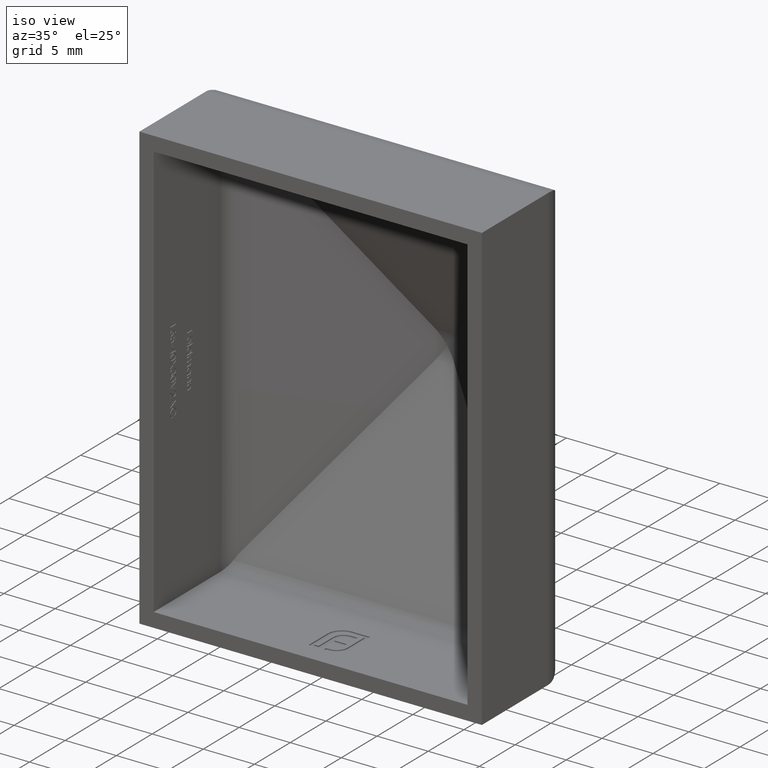
[diagram: clean part render]
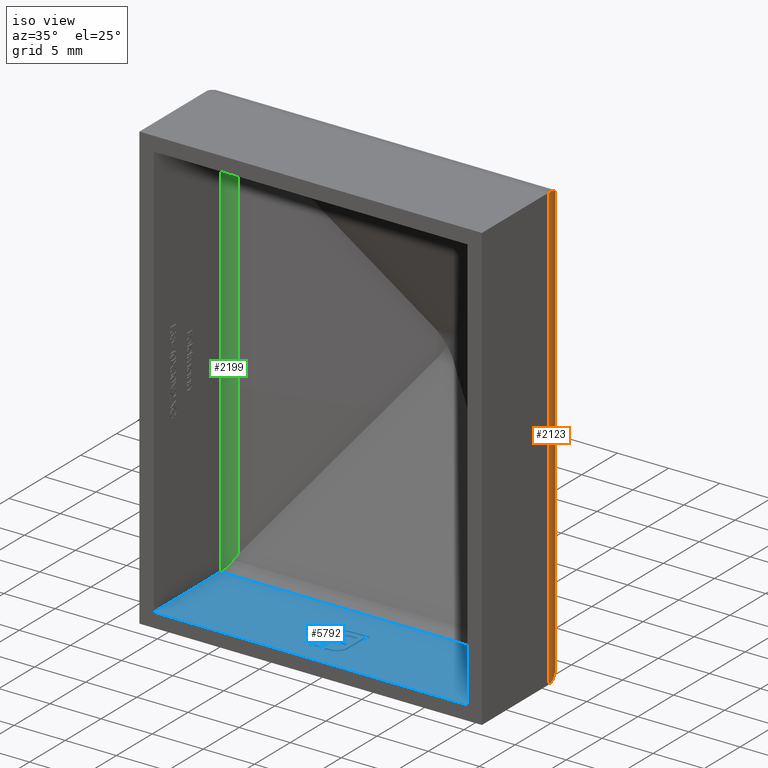
[diagram: same view with three faces highlighted in distinct colors, each labeled with its STEP entity id]
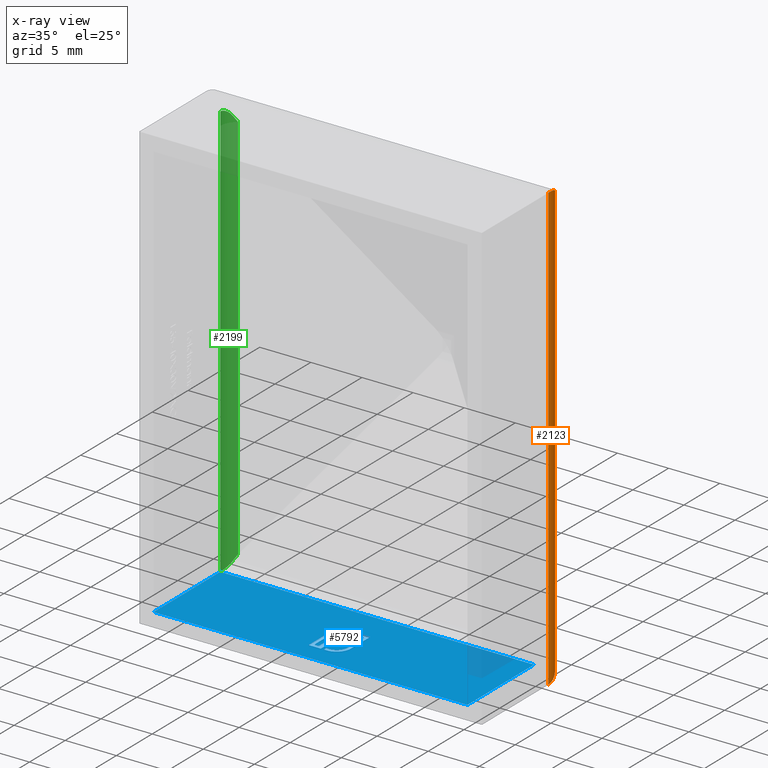
[diagram: x-ray of the same camera — body ghosted, the three highlighted faces saturated]
A machine part, iso view with three faces highlighted in distinct colors.
The next image is the same camera in x-ray (body ghosted, the three faces saturated) — at least one of them is partly hidden behind the body in this view.
Their STEP definitions:

[orange] entity #2123 — the highlighted cylindrical surface (partial cylindrical patch) has radius 3 mm, axis along (-0, -0, -1).
#6 = CARTESIAN_POINT ( 'NONE',  ( 15.37148168312974050, 11.82244978327095808, -19.95507723846092318 ) ) ;
#386 = CARTESIAN_POINT ( 'NONE',  ( 16.70326928354632301, 9.841064627597743808, 21.69708704955368717 ) ) ;
#1296 = CARTESIAN_POINT ( 'NONE',  ( 15.28707708930760845, 11.87280714091108358, -19.84517682961195106 ) ) ;
#1412 = CARTESIAN_POINT ( 'NONE',  ( 15.53236989041276317, 11.70961505891849619, -20.20132888707435015 ) ) ;
#1558 = CARTESIAN_POINT ( 'NONE',  ( 15.66867918130274084, 11.60893486939139763, 20.42105435541788339 ) ) ;
#1667 = CARTESIAN_POINT ( 'NONE',  ( 16.74033533030245735, 9.572631146092316357, 21.73909050069356752 ) ) ;
#1726 = CARTESIAN_POINT ( 'NONE',  ( 16.67551108115544167, 9.973934257418351379, 21.66558790018897440 ) ) ;
#2123 = ADVANCED_FACE ( 'NONE', ( #17419 ), #5554, .T. ) ;
#2312 = CARTESIAN_POINT ( 'NONE',  ( 15.37148168312973873, 11.82244978327095808, 19.95507723846092674 ) ) ;
#2420 = LINE ( 'NONE', #7260, #16449 ) ;
#2434 = CARTESIAN_POINT ( 'NONE',  ( 16.70326928354632301, 9.841064627597743808, -21.69708704955368717 ) ) ;
#3070 = CARTESIAN_POINT ( 'NONE',  ( 16.23055599966765072, 11.00033405241351403, 21.14613417132414952 ) ) ;
#3130 = CARTESIAN_POINT ( 'NONE',  ( 16.40821662155761373, 10.69218017578038804, 21.35687643289709570 ) ) ;
#3826 = CARTESIAN_POINT ( 'NONE',  ( 16.60442991971268967, 10.22910847771391296, -21.58437289162511163 ) ) ;
#3882 = CARTESIAN_POINT ( 'NONE',  ( 16.40821662155761373, 10.69218017578038804, -21.35687643289709570 ) ) ;
#3962 = CARTESIAN_POINT ( 'NONE',  ( 15.45331175715145378, 11.76800864154545678, -20.07389013918130871 ) ) ;
#4200 = VERTEX_POINT ( 'NONE', #4577 ) ;
#4236 = ORIENTED_EDGE ( 'NONE', *, *, #7316, .F. ) ;
#4286 = CARTESIAN_POINT ( 'NONE',  ( 15.66867918130274084, 11.60893486939139763, -20.42105435541788339 ) ) ;
#4492 = CARTESIAN_POINT ( 'NONE',  ( 15.28707708930760667, 11.87280714091108358, 21.75000000000000000 ) ) ;
#4577 = CARTESIAN_POINT ( 'NONE',  ( 16.74999999999999289, 9.296493103079967568, 21.75000000000000000 ) ) ;
#5199 = CARTESIAN_POINT ( 'NONE',  ( 15.53236989041276317, 11.70961505891849619, 20.20132888707435015 ) ) ;
#5215 = ORIENTED_EDGE ( 'NONE', *, *, #5414, .F. ) ;
#5268 = CARTESIAN_POINT ( 'NONE',  ( 16.09692896685115215, 11.17674144436293204, -20.98432485077248799 ) ) ;
#5414 = EDGE_CURVE ( 'NONE', #11470, #6874, #9003, .T. ) ;
#5554 = CYLINDRICAL_SURFACE ( 'NONE', #15036, 2.999999999999990674 ) ;
#5724 = CARTESIAN_POINT ( 'NONE',  ( 16.09692896685115215, 11.17674144436293204, 20.98432485077248799 ) ) ;
#5844 = CARTESIAN_POINT ( 'NONE',  ( 15.81448601036917267, 11.48311307768285694, 20.61918057407262594 ) ) ;
#6088 = DIRECTION ( 'NONE',  ( -0.000000000000000000, -0.000000000000000000, -1.000000000000000000 ) ) ;
#6197 = CARTESIAN_POINT ( 'NONE',  ( 15.53236989041276317, 11.70961505891849619, -20.20132888707435015 ) ) ;
#6632 = CARTESIAN_POINT ( 'NONE',  ( 16.75000000000000000, 9.296493103079967568, -21.75000000000000000 ) ) ;
#6874 = VERTEX_POINT ( 'NONE', #6197 ) ;
#7260 = CARTESIAN_POINT ( 'NONE',  ( 16.75000000000000000, 9.296493103079967568, 21.75000000000000000 ) ) ;
#7316 = EDGE_CURVE ( 'NONE', #11805, #11470, #12665, .T. ) ;
#7411 = DIRECTION ( 'NONE',  ( -0.000000000000000000, -0.000000000000000000, -1.000000000000000000 ) ) ;
#9003 =( BOUNDED_CURVE ( )  B_SPLINE_CURVE ( 3, ( #1296, #6, #3962, #1412 ),
 .UNSPECIFIED., .F., .F. ) 
 B_SPLINE_CURVE_WITH_KNOTS ( ( 4, 4 ),
 ( 3.679522182368637484, 3.777767943132392947 ),
 .UNSPECIFIED. ) 
 CURVE ( )  GEOMETRIC_REPRESENTATION_ITEM ( )  RATIONAL_B_SPLINE_CURVE ( ( 1.000000000000000000, 0.9991958092737058816, 0.9991958092737058816, 1.000000000000000000 ) ) 
 REPRESENTATION_ITEM ( '' )  );
#9097 = EDGE_CURVE ( 'NONE', #4200, #12010, #9371, .T. ) ;
#9191 = EDGE_CURVE ( 'NONE', #4200, #13666, #2420, .T. ) ;
#9213 = CARTESIAN_POINT ( 'NONE',  ( 16.75000000000000355, 9.435916837626141529, -21.75000000000000355 ) ) ;
#9371 = B_SPLINE_CURVE_WITH_KNOTS ( 'NONE', 3,
 ( #11159, #16619, #1667, #386, #1726, #12533, #15244, #9842, #3130, #3070, #5724, #5844, #1558, #12585 ),
 .UNSPECIFIED., .F., .F.,
 ( 4, 2, 2, 2, 2, 2, 4 ),
 ( 0.000000000000000000, 0.0004112258583125507879, 0.0008224517166251015757, 0.001233677574937652472, 0.001644903433250203151, 0.002467355149875301908, 0.003289806866500400665 ),
 .UNSPECIFIED. ) ;
#9753 = CARTESIAN_POINT ( 'NONE',  ( 13.75000000000000888, 9.296493103079965792, 21.75000000000000000 ) ) ;
#9842 = CARTESIAN_POINT ( 'NONE',  ( 16.46377361363001413, 10.58147893519188187, 21.42180310184390279 ) ) ;
#9924 = EDGE_CURVE ( 'NONE', #11805, #12010, #10640, .T. ) ;
#10404 = B_SPLINE_CURVE_WITH_KNOTS ( 'NONE', 3,
 ( #6632, #9213, #10766, #2434, #14789, #3826, #13314, #12020, #3882, #13376, #5268, #16444, #4286, #10995 ),
 .UNSPECIFIED., .F., .F.,
 ( 4, 2, 2, 2, 2, 2, 4 ),
 ( 0.000000000000000000, 0.0004112258583125507879, 0.0008224517166251015757, 0.001233677574937652472, 0.001644903433250203151, 0.002467355149875301908, 0.003289806866500400665 ),
 .UNSPECIFIED. ) ;
#10421 = ORIENTED_EDGE ( 'NONE', *, *, #9924, .T. ) ;
#10640 =( BOUNDED_CURVE ( )  B_SPLINE_CURVE ( 3, ( #13301, #2312, #17276, #5199 ),
 .UNSPECIFIED., .F., .F. ) 
 B_SPLINE_CURVE_WITH_KNOTS ( ( 4, 4 ),
 ( 0.5379295287788433688, 0.6361752895425998311 ),
 .UNSPECIFIED. ) 
 CURVE ( )  GEOMETRIC_REPRESENTATION_ITEM ( )  RATIONAL_B_SPLINE_CURVE ( ( 1.000000000000000000, 0.9991958092737058816, 0.9991958092737058816, 1.000000000000000000 ) ) 
 REPRESENTATION_ITEM ( '' )  );
#10766 = CARTESIAN_POINT ( 'NONE',  ( 16.74033533030245735, 9.572631146092316357, -21.73909050069356752 ) ) ;
#10995 = CARTESIAN_POINT ( 'NONE',  ( 15.53236989041276317, 11.70961505891849619, -20.20132888707435015 ) ) ;
#11159 = CARTESIAN_POINT ( 'NONE',  ( 16.74999999999999289, 9.296493103079967568, 21.75000000000000000 ) ) ;
#11346 = ORIENTED_EDGE ( 'NONE', *, *, #9097, .F. ) ;
#11470 = VERTEX_POINT ( 'NONE', #15775 ) ;
#11664 = EDGE_LOOP ( 'NONE', ( #5215, #4236, #10421, #11346, #17524, #15028 ) ) ;
#11805 = VERTEX_POINT ( 'NONE', #15290 ) ;
#12010 = VERTEX_POINT ( 'NONE', #15995 ) ;
#12020 = CARTESIAN_POINT ( 'NONE',  ( 16.46377361363001413, 10.58147893519188187, -21.42180310184390279 ) ) ;
#12244 = VECTOR ( 'NONE', #7411, 1000.000000000000000 ) ;
#12533 = CARTESIAN_POINT ( 'NONE',  ( 16.60442991971268967, 10.22910847771391296, 21.58437289162511163 ) ) ;
#12585 = CARTESIAN_POINT ( 'NONE',  ( 15.53236989041276317, 11.70961505891849619, 20.20132888707435015 ) ) ;
#12643 = EDGE_CURVE ( 'NONE', #13666, #6874, #10404, .T. ) ;
#12665 = LINE ( 'NONE', #4492, #12244 ) ;
#13301 = CARTESIAN_POINT ( 'NONE',  ( 15.28707708930760667, 11.87280714091108358, 19.84517682961194751 ) ) ;
#13314 = CARTESIAN_POINT ( 'NONE',  ( 16.56163005934021015, 10.35029205173072064, -21.53525582871081667 ) ) ;
#13376 = CARTESIAN_POINT ( 'NONE',  ( 16.23055599966765072, 11.00033405241351403, -21.14613417132414952 ) ) ;
#13666 = VERTEX_POINT ( 'NONE', #13733 ) ;
#13733 = CARTESIAN_POINT ( 'NONE',  ( 16.75000000000000000, 9.296493103079967568, -21.75000000000000000 ) ) ;
#14025 = DIRECTION ( 'NONE',  ( -0.000000000000000000, -0.000000000000000000, -1.000000000000000000 ) ) ;
#14789 = CARTESIAN_POINT ( 'NONE',  ( 16.67551108115544167, 9.973934257418351379, -21.66558790018897440 ) ) ;
#15028 = ORIENTED_EDGE ( 'NONE', *, *, #12643, .T. ) ;
#15036 = AXIS2_PLACEMENT_3D ( 'NONE', #9753, #14025, #16876 ) ;
#15244 = CARTESIAN_POINT ( 'NONE',  ( 16.56163005934021015, 10.35029205173072064, 21.53525582871081667 ) ) ;
#15290 = CARTESIAN_POINT ( 'NONE',  ( 15.28707708930760667, 11.87280714091108358, 19.84517682961194751 ) ) ;
#15775 = CARTESIAN_POINT ( 'NONE',  ( 15.28707708930760845, 11.87280714091108358, -19.84517682961195106 ) ) ;
#15995 = CARTESIAN_POINT ( 'NONE',  ( 15.53236989041276317, 11.70961505891849619, 20.20132888707435015 ) ) ;
#16444 = CARTESIAN_POINT ( 'NONE',  ( 15.81448601036917267, 11.48311307768285694, -20.61918057407262594 ) ) ;
#16449 = VECTOR ( 'NONE', #6088, 1000.000000000000000 ) ;
#16619 = CARTESIAN_POINT ( 'NONE',  ( 16.75000000000000355, 9.435916837626141529, 21.75000000000000355 ) ) ;
#16876 = DIRECTION ( 'NONE',  ( -1.000000000000000000, 0.000000000000000000, 0.000000000000000000 ) ) ;
#17276 = CARTESIAN_POINT ( 'NONE',  ( 15.45331175715145200, 11.76800864154545678, 20.07389013918131226 ) ) ;
#17419 = FACE_OUTER_BOUND ( 'NONE', #11664, .T. ) ;
#17524 = ORIENTED_EDGE ( 'NONE', *, *, #9191, .T. ) ;

[blue] entity #5792 — the highlighted planar face has unit normal (0, 0, 1).
#73 = B_SPLINE_CURVE_WITH_KNOTS ( 'NONE', 3,
 ( #12580, #9781, #1899, #722, #15525, #4764, #11380 ),
 .UNSPECIFIED., .F., .F.,
 ( 4, 1, 1, 1, 4 ),
 ( 0.000000000000000000, 0.2548261097762420380, 0.5042880443381988487, 0.7513476757168013886, 1.000000000000000000 ),
 .UNSPECIFIED. ) ;
#109 = CARTESIAN_POINT ( 'NONE',  ( 1.249941684161429256, 5.747375787263824698, -20.35000000000000142 ) ) ;
#111 = CARTESIAN_POINT ( 'NONE',  ( 0.6298724851063767227, 2.070098538518159614, -20.35000000000000497 ) ) ;
#146 = VERTEX_POINT ( 'NONE', #4765 ) ;
#203 = EDGE_CURVE ( 'NONE', #10649, #8007, #11372, .T. ) ;
#256 = VECTOR ( 'NONE', #806, 1000.000000000000000 ) ;
#289 = EDGE_CURVE ( 'NONE', #12456, #10768, #12183, .T. ) ;
#417 = CARTESIAN_POINT ( 'NONE',  ( 0.9606786933283801844, 2.654825718111416766, -20.35000000000000142 ) ) ;
#422 = ORIENTED_EDGE ( 'NONE', *, *, #4562, .T. ) ;
#426 = VERTEX_POINT ( 'NONE', #12448 ) ;
#439 = CARTESIAN_POINT ( 'NONE',  ( 1.514462327968287170, 2.991952414275720340, -20.35000000000000142 ) ) ;
#494 = CARTESIAN_POINT ( 'NONE',  ( -0.3973694555211990109, 4.297454346209211629, -20.34999999999999432 ) ) ;
#522 = EDGE_CURVE ( 'NONE', #9059, #6771, #2862, .T. ) ;
#537 = ORIENTED_EDGE ( 'NONE', *, *, #5242, .T. ) ;
#546 = CARTESIAN_POINT ( 'NONE',  ( 1.569979006298121593, 3.378119897364127766, -20.35000000000000142 ) ) ;
#580 = CARTESIAN_POINT ( 'NONE',  ( 0.4603525481732841929, 2.023855686642844987, -20.35000000000000142 ) ) ;
#583 = CARTESIAN_POINT ( 'NONE',  ( -0.01224632610215855948, 4.909727081875441712, -20.35000000000000142 ) ) ;
#591 = CARTESIAN_POINT ( 'NONE',  ( -0.5076111054239802467, 6.037914286280331666, -20.35000000000000142 ) ) ;
#643 = CARTESIAN_POINT ( 'NONE',  ( 0.9097537172052805321, 2.603799445529776602, -20.35000000000000142 ) ) ;
#644 = CARTESIAN_POINT ( 'NONE',  ( 0.2827115206306843875, 2.000870976990909877, -20.34999999999999787 ) ) ;
#702 = CARTESIAN_POINT ( 'NONE',  ( -16.74999999999998934, 3.076925082857724936E-15, -20.35000000000000142 ) ) ;
#712 = CARTESIAN_POINT ( 'NONE',  ( 0.009404991138003557932, 4.916713647705303281, -20.35000000000000497 ) ) ;
#722 = CARTESIAN_POINT ( 'NONE',  ( -1.208358635274771054, 5.645294444760965646, -20.34999999999999787 ) ) ;
#737 = ORIENTED_EDGE ( 'NONE', *, *, #9843, .T. ) ;
#797 = CARTESIAN_POINT ( 'NONE',  ( -1.593655236762294036, 4.689293212036393044, -20.35000000000000497 ) ) ;
#806 = DIRECTION ( 'NONE',  ( 1.000000000000000000, 0.000000000000000000, 0.000000000000000000 ) ) ;
#812 = VERTEX_POINT ( 'NONE', #1209 ) ;
#816 = ORIENTED_EDGE ( 'NONE', *, *, #14896, .T. ) ;
#844 = LINE ( 'NONE', #13371, #14623 ) ;
#860 = CARTESIAN_POINT ( 'NONE',  ( -1.592784259771387489, 4.780145623733080384, -20.35000000000000497 ) ) ;
#871 = CARTESIAN_POINT ( 'NONE',  ( -0.1714485654303601336, 5.300793095404714883, -20.35000000000000142 ) ) ;
#876 = CARTESIAN_POINT ( 'NONE',  ( 15.34999999999999432, 9.296493103079969345, -20.35000000000000142 ) ) ;
#964 = CARTESIAN_POINT ( 'NONE',  ( -0.6916926977970212498, 5.983196387352718304, -20.35000000000000142 ) ) ;
#994 = B_SPLINE_CURVE_WITH_KNOTS ( 'NONE', 3,
 ( #8261, #1494, #15065, #6961, #16426, #494, #1952 ),
 .UNSPECIFIED., .F., .F.,
 ( 4, 1, 1, 1, 4 ),
 ( 0.000000000000000000, 0.2296577939907727406, 0.4728894664265903547, 0.7276593582172861119, 1.000000000000000000 ),
 .UNSPECIFIED. ) ;
#998 = ORIENTED_EDGE ( 'NONE', *, *, #7323, .T. ) ;
#1027 = CARTESIAN_POINT ( 'NONE',  ( -1.255464568732409303, 4.898598228390397935, -20.35000000000000142 ) ) ;
#1031 = B_SPLINE_CURVE_WITH_KNOTS ( 'NONE', 3,
 ( #6881, #5587, #1236, #2566, #3963, #14869, #8071 ),
 .UNSPECIFIED., .F., .F.,
 ( 4, 1, 1, 1, 4 ),
 ( 0.000000000000000000, 0.2752367449667309507, 0.5313220627563629561, 0.7730509928784794482, 1.000000000000000000 ),
 .UNSPECIFIED. ) ;
#1105 = CARTESIAN_POINT ( 'NONE',  ( 1.249941684161429256, 3.378119897364127766, -20.35000000000000142 ) ) ;
#1195 = B_SPLINE_CURVE_WITH_KNOTS ( 'NONE', 3,
 ( #12064, #13245, #5144, #13421, #17341, #5319, #10570, #3813, #6395, #4101, #6801 ),
 .UNSPECIFIED., .F., .F.,
 ( 4, 1, 1, 1, 1, 1, 1, 1, 4 ),
 ( 0.000000000000000000, 0.1281924671261277793, 0.2535812564278780434, 0.3754453157299565413, 0.4969638611844704457, 0.6193912034695908675, 0.7436315793729396662, 0.8699315812134844617, 1.000000000000000000 ),
 .UNSPECIFIED. ) ;
#1209 = CARTESIAN_POINT ( 'NONE',  ( -0.5461861441567423814, 5.080359225565667991, -20.35000000000000497 ) ) ;
#1236 = CARTESIAN_POINT ( 'NONE',  ( -0.8354877925341719358, 4.339866747039957673, -20.35000000000000497 ) ) ;
#1440 = CARTESIAN_POINT ( 'NONE',  ( -0.5204521862445140590, 5.104595201156042705, -20.34999999999999787 ) ) ;
#1458 = ORIENTED_EDGE ( 'NONE', *, *, #11866, .T. ) ;
#1494 = CARTESIAN_POINT ( 'NONE',  ( -0.3606090146142270636, 4.541116454859017715, -20.35000000000000142 ) ) ;
#1509 = VERTEX_POINT ( 'NONE', #12786 ) ;
#1568 = LINE ( 'NONE', #8869, #16630 ) ;
#1638 = CARTESIAN_POINT ( 'NONE',  ( -0.2356346453882609271, 4.762355867879464633, -20.35000000000000142 ) ) ;
#1668 = EDGE_CURVE ( 'NONE', #15688, #10649, #3840, .T. ) ;
#1691 = CARTESIAN_POINT ( 'NONE',  ( 1.569979006298121593, 3.378119897364127766, -20.35000000000000142 ) ) ;
#1733 = LINE ( 'NONE', #11398, #8327 ) ;
#1744 = VECTOR ( 'NONE', #7519, 1000.000000000000000 ) ;
#1748 = EDGE_CURVE ( 'NONE', #7594, #16052, #6822, .T. ) ;
#1756 = CARTESIAN_POINT ( 'NONE',  ( 1.073594606921022265, 2.791498116529299356, -20.35000000000000497 ) ) ;
#1805 = CARTESIAN_POINT ( 'NONE',  ( 0.5958178940768260601, 2.396431398560824544, -20.35000000000000497 ) ) ;
#1842 = CARTESIAN_POINT ( 'NONE',  ( -0.5695567871135009952, 5.055679031104507004, -20.35000000000000497 ) ) ;
#1868 = CARTESIAN_POINT ( 'NONE',  ( 0.9356193142057492862, 2.628644739911363271, -20.35000000000000142 ) ) ;
#1880 = CARTESIAN_POINT ( 'NONE',  ( 0.8694891532540344192, 2.182062048052254788, -20.35000000000000142 ) ) ;
#1899 = CARTESIAN_POINT ( 'NONE',  ( -1.320473831698218525, 5.514706226021780289, -20.34999999999999787 ) ) ;
#1917 = VECTOR ( 'NONE', #13983, 1000.000000000000000 ) ;
#1940 = CARTESIAN_POINT ( 'NONE',  ( -1.273617914625601255, 3.504665267086544578, -20.35000000000000142 ) ) ;
#1952 = CARTESIAN_POINT ( 'NONE',  ( -0.3975973874504206695, 4.270468859342201107, -20.35000000000000142 ) ) ;
#1997 = EDGE_CURVE ( 'NONE', #17277, #426, #3823, .T. ) ;
#2004 = CARTESIAN_POINT ( 'NONE',  ( 0.8311173314672372081, 3.683461628178215985, -20.34999999999999787 ) ) ;
#2138 = EDGE_CURVE ( 'NONE', #3977, #13225, #13534, .T. ) ;
#2159 = CARTESIAN_POINT ( 'NONE',  ( 0.05378126293338754416, 4.931033226544008663, -20.35000000000000142 ) ) ;
#2201 = CARTESIAN_POINT ( 'NONE',  ( 1.360158619080953146, 2.655586657336135747, -20.35000000000000142 ) ) ;
#2298 = ORIENTED_EDGE ( 'NONE', *, *, #3829, .T. ) ;
#2304 = CARTESIAN_POINT ( 'NONE',  ( -0.6017028224865766939, 6.011896431070681501, -20.34999999999999432 ) ) ;
#2308 = LINE ( 'NONE', #15643, #13359 ) ;
#2358 = CARTESIAN_POINT ( 'NONE',  ( -1.273617914625601477, 4.689293212036392156, -20.35000000000000142 ) ) ;
#2510 = CARTESIAN_POINT ( 'NONE',  ( 15.34999999999999076, 9.296493103079964015, -20.35000000000000142 ) ) ;
#2566 = CARTESIAN_POINT ( 'NONE',  ( -0.8226008834491617128, 4.474753337739155512, -20.34999999999999787 ) ) ;
#2793 = EDGE_CURVE ( 'NONE', #13225, #8531, #10916, .T. ) ;
#2808 = CARTESIAN_POINT ( 'NONE',  ( -0.6017028224865766939, 6.011896431070681501, -20.34999999999999432 ) ) ;
#2827 = CARTESIAN_POINT ( 'NONE',  ( -0.2212502915791821068, 4.777466759972011978, -20.35000000000000142 ) ) ;
#2837 = CARTESIAN_POINT ( 'NONE',  ( -0.6745229777412099503, 4.917428566404431045, -20.34999999999999432 ) ) ;
#2862 = LINE ( 'NONE', #15394, #5233 ) ;
#2924 = CARTESIAN_POINT ( 'NONE',  ( -1.273617914625601477, 2.320037322136695668, -20.35000000000000142 ) ) ;
#2958 = CARTESIAN_POINT ( 'NONE',  ( -0.2795777449075820820, 5.264358188120460191, -20.35000000000000142 ) ) ;
#3052 = VERTEX_POINT ( 'NONE', #14244 ) ;
#3108 = LINE ( 'NONE', #14237, #7601 ) ;
#3121 = DIRECTION ( 'NONE',  ( 3.112483067039301959E-15, 1.000000000000000000, 0.000000000000000000 ) ) ;
#3154 = ORIENTED_EDGE ( 'NONE', *, *, #5748, .T. ) ;
#3160 = CARTESIAN_POINT ( 'NONE',  ( -0.3535106134826110913, 4.562747842313975788, -20.35000000000000142 ) ) ;
#3202 = DIRECTION ( 'NONE',  ( 6.639963876350506219E-16, 1.000000000000000000, 0.000000000000000000 ) ) ;
#3271 = CARTESIAN_POINT ( 'NONE',  ( 0.1918591089339971856, 2.320037322136695668, -20.35000000000000142 ) ) ;
#3316 = EDGE_CURVE ( 'NONE', #10701, #1509, #2308, .T. ) ;
#3335 = DIRECTION ( 'NONE',  ( 1.000000000000000000, 0.000000000000000000, 0.000000000000000000 ) ) ;
#3393 = CARTESIAN_POINT ( 'NONE',  ( 0.2979379987738058344, 2.322657440803786777, -20.35000000000000497 ) ) ;
#3458 = DIRECTION ( 'NONE',  ( 1.000000000000000000, 0.000000000000000000, 0.000000000000000000 ) ) ;
#3493 = CARTESIAN_POINT ( 'NONE',  ( -0.9429671098670290297, 5.857592722183348144, -20.35000000000000142 ) ) ;
#3524 = CARTESIAN_POINT ( 'NONE',  ( 1.569979006298121815, 4.722766503382322512, -20.35000000000000142 ) ) ;
#3734 = CARTESIAN_POINT ( 'NONE',  ( -1.100299755249489086, 5.271905134034180485, -20.35000000000000497 ) ) ;
#3751 = CARTESIAN_POINT ( 'NONE',  ( -0.1053184044786455303, 2.000000000000003553, -20.35000000000000142 ) ) ;
#3782 = CARTESIAN_POINT ( 'NONE',  ( -0.05429422266242510398, 5.335896261809780938, -20.35000000000000142 ) ) ;
#3813 = CARTESIAN_POINT ( 'NONE',  ( -0.8021571202329981221, 5.571028710023417929, -20.35000000000000497 ) ) ;
#3823 = LINE ( 'NONE', #7247, #1917 ) ;
#3829 = EDGE_CURVE ( 'NONE', #4605, #5306, #13761, .T. ) ;
#3840 = LINE ( 'NONE', #10267, #256 ) ;
#3894 = ORIENTED_EDGE ( 'NONE', *, *, #12520, .T. ) ;
#3939 = CARTESIAN_POINT ( 'NONE',  ( 0.9356193142057492862, 2.628644739911363271, -20.35000000000000142 ) ) ;
#3955 = EDGE_CURVE ( 'NONE', #16772, #3052, #6796, .T. ) ;
#3963 = CARTESIAN_POINT ( 'NONE',  ( -0.8002984377738689981, 4.599922783473945564, -20.34999999999999432 ) ) ;
#3977 = VERTEX_POINT ( 'NONE', #11407 ) ;
#4002 = FACE_BOUND ( 'NONE', #13743, .T. ) ;
#4101 = CARTESIAN_POINT ( 'NONE',  ( -0.9388295186508806012, 5.458112796430774516, -20.35000000000000497 ) ) ;
#4102 = EDGE_CURVE ( 'NONE', #812, #12456, #8317, .T. ) ;
#4137 = ORIENTED_EDGE ( 'NONE', *, *, #13800, .T. ) ;
#4157 = ORIENTED_EDGE ( 'NONE', *, *, #17070, .T. ) ;
#4178 = EDGE_LOOP ( 'NONE', ( #15600, #17063, #11504, #10038 ) ) ;
#4179 = VECTOR ( 'NONE', #9233, 1000.000000000000000 ) ;
#4219 = EDGE_CURVE ( 'NONE', #9979, #7283, #6570, .T. ) ;
#4398 = VERTEX_POINT ( 'NONE', #7989 ) ;
#4504 = B_SPLINE_CURVE_WITH_KNOTS ( 'NONE', 3,
 ( #9723, #11210, #10982, #2837, #5613, #1842, #12817 ),
 .UNSPECIFIED., .F., .F.,
 ( 4, 1, 1, 1, 4 ),
 ( 0.000000000000000000, 0.2650465622674533228, 0.5182727197139301856, 0.7624607574988784275, 1.000000000000000000 ),
 .UNSPECIFIED. ) ;
#4562 = EDGE_CURVE ( 'NONE', #4398, #14326, #8901, .T. ) ;
#4569 = CARTESIAN_POINT ( 'NONE',  ( -0.7666200139957904947, 4.717051551201310033, -20.35000000000000142 ) ) ;
#4605 = VERTEX_POINT ( 'NONE', #1691 ) ;
#4670 = CARTESIAN_POINT ( 'NONE',  ( 0.4011641252880021602, 2.338190668029887398, -20.34999999999999432 ) ) ;
#4689 = CARTESIAN_POINT ( 'NONE',  ( -0.3975973874504206695, 3.476906927921626700, -20.35000000000000142 ) ) ;
#4751 = CARTESIAN_POINT ( 'NONE',  ( -1.411593188710042801, 5.366923256356430194, -20.35000000000000142 ) ) ;
#4764 = CARTESIAN_POINT ( 'NONE',  ( -0.9902156529353589587, 5.825923977638618467, -20.35000000000000497 ) ) ;
#4765 = CARTESIAN_POINT ( 'NONE',  ( 0.8311173314672372081, 5.372638208537442672, -20.35000000000000142 ) ) ;
#4901 = CARTESIAN_POINT ( 'NONE',  ( -0.9162930243848280698, 5.873869684325799589, -20.35000000000000142 ) ) ;
#4910 = CARTESIAN_POINT ( 'NONE',  ( -1.582738422427286462, 4.869732528274455241, -20.34999999999999432 ) ) ;
#4922 = CARTESIAN_POINT ( 'NONE',  ( 1.485736530145323808, 2.902778846682815050, -20.35000000000000497 ) ) ;
#4944 = CARTESIAN_POINT ( 'NONE',  ( 1.514462327968287170, 2.991952414275720340, -20.35000000000000142 ) ) ;
#4948 = CARTESIAN_POINT ( 'NONE',  ( -0.9429671098670290297, 5.857592722183348144, -20.35000000000000142 ) ) ;
#4960 = CARTESIAN_POINT ( 'NONE',  ( 1.360158619080953146, 2.655586657336135747, -20.35000000000000142 ) ) ;
#5009 = VECTOR ( 'NONE', #8999, 1000.000000000000000 ) ;
#5019 = LINE ( 'NONE', #3524, #6730 ) ;
#5110 = B_SPLINE_CURVE_WITH_KNOTS ( 'NONE', 3,
 ( #2808, #6942, #591, #7290, #14091, #6122, #9995 ),
 .UNSPECIFIED., .F., .F.,
 ( 4, 1, 1, 1, 4 ),
 ( 0.000000000000000000, 0.2498987543963735458, 0.4978226843676622493, 0.7474950417136815295, 0.9999999999999998890 ),
 .UNSPECIFIED. ) ;
#5144 = CARTESIAN_POINT ( 'NONE',  ( -0.3218555176182735789, 5.744615803771209173, -20.35000000000000142 ) ) ;
#5153 = DIRECTION ( 'NONE',  ( -2.728752277952260269E-15, -1.000000000000000000, 0.000000000000000000 ) ) ;
#5169 = DIRECTION ( 'NONE',  ( 1.000000000000000000, 0.000000000000000000, -0.000000000000000000 ) ) ;
#5233 = VECTOR ( 'NONE', #14207, 1000.000000000000000 ) ;
#5242 = EDGE_CURVE ( 'NONE', #7128, #12256, #9129, .T. ) ;
#5306 = VERTEX_POINT ( 'NONE', #4944 ) ;
#5319 = CARTESIAN_POINT ( 'NONE',  ( -0.6213302866039264183, 5.670410478004447974, -20.35000000000000142 ) ) ;
#5345 = CARTESIAN_POINT ( 'NONE',  ( 0.5914975507347902672, 5.372638208537442672, -20.35000000000000497 ) ) ;
#5403 = EDGE_CURVE ( 'NONE', #146, #16772, #6574, .T. ) ;
#5494 = CARTESIAN_POINT ( 'NONE',  ( -0.1714485654303601336, 5.300793095404714883, -20.35000000000000142 ) ) ;
#5527 = VERTEX_POINT ( 'NONE', #14268 ) ;
#5578 = CARTESIAN_POINT ( 'NONE',  ( -1.216060181945405105, 2.000000000000003553, -20.35000000000000142 ) ) ;
#5587 = CARTESIAN_POINT ( 'NONE',  ( -0.8374491170439732901, 4.246822666642392718, -20.34999999999999787 ) ) ;
#5613 = CARTESIAN_POINT ( 'NONE',  ( -0.6169522243960077201, 5.005627836070276615, -20.35000000000000142 ) ) ;
#5634 = CARTESIAN_POINT ( 'NONE',  ( -0.2155353393981697119, 6.067413109400516369, -20.35000000000000142 ) ) ;
#5712 = VECTOR ( 'NONE', #16792, 1000.000000000000000 ) ;
#5748 = EDGE_CURVE ( 'NONE', #8007, #9652, #16307, .T. ) ;
#5753 = CARTESIAN_POINT ( 'NONE',  ( -0.2643639572355996892, 4.732175469303321336, -20.35000000000000853 ) ) ;
#5767 = B_SPLINE_CURVE_WITH_KNOTS ( 'NONE', 3,
 ( #797, #11582, #860, #4910, #16930, #15674, #6165, #15609, #12834, #6333, #17102 ),
 .UNSPECIFIED., .F., .F.,
 ( 4, 1, 1, 1, 1, 1, 1, 1, 4 ),
 ( 0.000000000000000000, 0.1287995950824973035, 0.2547407131451100981, 0.3804244813366443601, 0.5045050273662053941, 0.6270584524605823384, 0.7500370845058726976, 0.8744898464228468837, 1.000000000000000000 ),
 .UNSPECIFIED. ) ;
#5792 = ADVANCED_FACE ( 'NONE', ( #12699, #4002 ), #11976, .T. ) ;
#5797 = EDGE_CURVE ( 'NONE', #14615, #10701, #13957, .T. ) ;
#5829 = ORIENTED_EDGE ( 'NONE', *, *, #4102, .T. ) ;
#5860 = ORIENTED_EDGE ( 'NONE', *, *, #10804, .T. ) ;
#5873 = CARTESIAN_POINT ( 'NONE',  ( 1.232195284965466264, 3.168109376151251322, -20.34999999999999432 ) ) ;
#6001 = CARTESIAN_POINT ( 'NONE',  ( -0.07063132933346838449, 4.886513121156715656, -20.35000000000000497 ) ) ;
#6114 = CARTESIAN_POINT ( 'NONE',  ( -0.1758398249650089396, 4.819897577890956519, -20.35000000000000497 ) ) ;
#6122 = CARTESIAN_POINT ( 'NONE',  ( -0.2484982190058199758, 6.066877008721581532, -20.35000000000000142 ) ) ;
#6165 = CARTESIAN_POINT ( 'NONE',  ( -1.523556698244138863, 5.127306588208772276, -20.35000000000000142 ) ) ;
#6202 = EDGE_CURVE ( 'NONE', #9652, #9111, #6978, .T. ) ;
#6238 = LINE ( 'NONE', #702, #10226 ) ;
#6285 = CARTESIAN_POINT ( 'NONE',  ( 1.514462327968287170, 2.991952414275720340, -20.35000000000000142 ) ) ;
#6287 = ORIENTED_EDGE ( 'NONE', *, *, #15897, .T. ) ;
#6297 = DIRECTION ( 'NONE',  ( -5.611237078605925576E-15, -1.000000000000000000, 8.977979325769480922E-14 ) ) ;
#6333 = CARTESIAN_POINT ( 'NONE',  ( -1.426035993195434948, 5.340952355792298434, -20.35000000000000142 ) ) ;
#6355 = VECTOR ( 'NONE', #9173, 1000.000000000000000 ) ;
#6370 = CARTESIAN_POINT ( 'NONE',  ( 0.3031170007729279692, 5.372090557383607745, -20.35000000000000142 ) ) ;
#6395 = CARTESIAN_POINT ( 'NONE',  ( -0.8872260925906645390, 5.507505519948910688, -20.34999999999999432 ) ) ;
#6430 = CARTESIAN_POINT ( 'NONE',  ( 0.2086470719412859276, 5.371029528889907034, -20.35000000000000497 ) ) ;
#6498 = EDGE_CURVE ( 'NONE', #10751, #12376, #3108, .T. ) ;
#6501 = ORIENTED_EDGE ( 'NONE', *, *, #10463, .T. ) ;
#6533 = ORIENTED_EDGE ( 'NONE', *, *, #9822, .T. ) ;
#6563 = VERTEX_POINT ( 'NONE', #4960 ) ;
#6570 = LINE ( 'NONE', #15294, #5712 ) ;
#6574 = LINE ( 'NONE', #16117, #6355 ) ;
#6599 = CARTESIAN_POINT ( 'NONE',  ( 0.3518777700023433819, 5.372638208537442672, -20.35000000000000142 ) ) ;
#6730 = VECTOR ( 'NONE', #6297, 1000.000000000000000 ) ;
#6771 = VERTEX_POINT ( 'NONE', #12700 ) ;
#6796 = LINE ( 'NONE', #7217, #14601 ) ;
#6801 = CARTESIAN_POINT ( 'NONE',  ( -0.9650104968509339853, 5.433053417308144617, -20.35000000000000142 ) ) ;
#6822 = LINE ( 'NONE', #8499, #12966 ) ;
#6842 = EDGE_CURVE ( 'NONE', #17131, #7128, #73, .T. ) ;
#6881 = CARTESIAN_POINT ( 'NONE',  ( -0.8384651271285172847, 4.198623746209474206, -20.35000000000000142 ) ) ;
#6895 = LINE ( 'NONE', #1940, #7520 ) ;
#6942 = CARTESIAN_POINT ( 'NONE',  ( -0.5702560808606765841, 6.020591954927406952, -20.35000000000000142 ) ) ;
#6961 = CARTESIAN_POINT ( 'NONE',  ( -0.3866181506439645976, 4.425299788725601147, -20.35000000000001208 ) ) ;
#6978 = LINE ( 'NONE', #11596, #16936 ) ;
#7016 = B_SPLINE_CURVE_WITH_KNOTS ( 'NONE', 3,
 ( #8525, #12563, #10046, #7289, #9875, #11188, #1880 ),
 .UNSPECIFIED., .F., .F.,
 ( 4, 1, 1, 1, 4 ),
 ( 0.000000000000000000, 0.2502112839297327418, 0.4976763372912434980, 0.7465535718222464645, 1.000000000000000000 ),
 .UNSPECIFIED. ) ;
#7105 = CARTESIAN_POINT ( 'NONE',  ( 1.207575573631551880, 3.068275607748206735, -20.35000000000001563 ) ) ;
#7128 = VERTEX_POINT ( 'NONE', #4948 ) ;
#7157 = EDGE_CURVE ( 'NONE', #10768, #146, #12460, .T. ) ;
#7201 = ORIENTED_EDGE ( 'NONE', *, *, #10571, .T. ) ;
#7214 = CARTESIAN_POINT ( 'NONE',  ( -0.8384651271285172847, 2.320037322136695668, -20.35000000000000142 ) ) ;
#7217 = CARTESIAN_POINT ( 'NONE',  ( 0.5527175180779205776, 4.953813855843248071, -20.34999999999999432 ) ) ;
#7247 = CARTESIAN_POINT ( 'NONE',  ( 0.6772218334499758852, 6.067413109400515481, -20.35000000000000142 ) ) ;
#7270 = AXIS2_PLACEMENT_3D ( 'NONE', #9229, #16054, #5169 ) ;
#7282 = CARTESIAN_POINT ( 'NONE',  ( 0.6877242531450165064, 2.439072342589526432, -20.34999999999999787 ) ) ;
#7283 = VERTEX_POINT ( 'NONE', #12618 ) ;
#7289 = CARTESIAN_POINT ( 'NONE',  ( 1.148102815359975049, 2.386213402904190151, -20.35000000000000497 ) ) ;
#7290 = CARTESIAN_POINT ( 'NONE',  ( -0.4113747413207280434, 6.054426504352363736, -20.35000000000000142 ) ) ;
#7299 = ORIENTED_EDGE ( 'NONE', *, *, #1748, .T. ) ;
#7323 = EDGE_CURVE ( 'NONE', #6563, #4398, #7016, .T. ) ;
#7336 = ORIENTED_EDGE ( 'NONE', *, *, #2138, .T. ) ;
#7344 = CARTESIAN_POINT ( 'NONE',  ( -0.2212502915791821068, 4.777466759972011978, -20.35000000000000142 ) ) ;
#7420 = CARTESIAN_POINT ( 'NONE',  ( 0.1239424786785359028, 4.944156525249453260, -20.35000000000000497 ) ) ;
#7465 = CARTESIAN_POINT ( 'NONE',  ( -0.3975973874504206695, 4.080242593888503855, -20.35000000000000497 ) ) ;
#7514 = CARTESIAN_POINT ( 'NONE',  ( 0.8588954600352747271, 2.554947359451874789, -20.34999999999999787 ) ) ;
#7519 = DIRECTION ( 'NONE',  ( 2.289642715982859325E-15, -1.000000000000000000, 1.465371338229029968E-13 ) ) ;
#7520 = VECTOR ( 'NONE', #10224, 1000.000000000000000 ) ;
#7548 = CARTESIAN_POINT ( 'NONE',  ( 0.8311173314672372081, 3.476906927921626700, -20.35000000000000142 ) ) ;
#7591 = B_SPLINE_CURVE_WITH_KNOTS ( 'NONE', 3,
 ( #6285, #13022, #4922, #14482, #10334, #14371, #2201 ),
 .UNSPECIFIED., .F., .F.,
 ( 4, 1, 1, 1, 4 ),
 ( 0.000000000000000000, 0.2531688454537559529, 0.5035614958825503917, 0.7514299623983483611, 1.000000000000000000 ),
 .UNSPECIFIED. ) ;
#7594 = VERTEX_POINT ( 'NONE', #7214 ) ;
#7597 = ORIENTED_EDGE ( 'NONE', *, *, #14138, .T. ) ;
#7601 = VECTOR ( 'NONE', #14124, 1000.000000000000000 ) ;
#7649 = CARTESIAN_POINT ( 'NONE',  ( 0.8311173314672372081, 3.890016328434806159, -20.35000000000000142 ) ) ;
#7685 = CARTESIAN_POINT ( 'NONE',  ( -1.232524590643040874, 4.998251045220524880, -20.35000000000000497 ) ) ;
#7738 = CARTESIAN_POINT ( 'NONE',  ( -1.038707877310422578, 5.356329563137670391, -20.35000000000000142 ) ) ;
#7868 = B_SPLINE_CURVE_WITH_KNOTS ( 'NONE', 3,
 ( #13030, #11608, #15698, #7420, #2159, #712, #11668 ),
 .UNSPECIFIED., .F., .F.,
 ( 4, 1, 1, 1, 4 ),
 ( 0.000000000000000000, 0.2663974462967138579, 0.5202005568595411411, 0.7659044003744408524, 1.000000000000000000 ),
 .UNSPECIFIED. ) ;
#7958 = CARTESIAN_POINT ( 'NONE',  ( -1.273617914625601477, 4.689293212036392156, -20.35000000000000142 ) ) ;
#7989 = CARTESIAN_POINT ( 'NONE',  ( 0.8694891532540344192, 2.182062048052254788, -20.35000000000000142 ) ) ;
#8007 = VERTEX_POINT ( 'NONE', #7548 ) ;
#8045 = ORIENTED_EDGE ( 'NONE', *, *, #14011, .T. ) ;
#8068 = ORIENTED_EDGE ( 'NONE', *, *, #6842, .T. ) ;
#8071 = CARTESIAN_POINT ( 'NONE',  ( -0.7666200139957904947, 4.717051551201310033, -20.35000000000000142 ) ) ;
#8134 = LINE ( 'NONE', #12870, #14906 ) ;
#8260 = CARTESIAN_POINT ( 'NONE',  ( -0.3975973874504206695, 4.270468859342201107, -20.35000000000000142 ) ) ;
#8261 = CARTESIAN_POINT ( 'NONE',  ( -0.3535106134826110913, 4.562747842313975788, -20.35000000000000142 ) ) ;
#8312 = ORIENTED_EDGE ( 'NONE', *, *, #10117, .T. ) ;
#8317 = B_SPLINE_CURVE_WITH_KNOTS ( 'NONE', 3,
 ( #16489, #1440, #8371, #11097, #2958, #12468, #5494 ),
 .UNSPECIFIED., .F., .F.,
 ( 4, 1, 1, 1, 4 ),
 ( 0.000000000000000000, 0.2411211622112608699, 0.4851305330037717356, 0.7363631959406388150, 1.000000000000000000 ),
 .UNSPECIFIED. ) ;
#8327 = VECTOR ( 'NONE', #3202, 1000.000000000000000 ) ;
#8371 = CARTESIAN_POINT ( 'NONE',  ( -0.4686760227432879566, 5.153357456812902804, -20.34999999999999787 ) ) ;
#8377 = EDGE_CURVE ( 'NONE', #426, #4605, #5019, .T. ) ;
#8499 = CARTESIAN_POINT ( 'NONE',  ( -0.8384651271285173957, 3.259330534173085603, -20.35000000000000142 ) ) ;
#8519 = CARTESIAN_POINT ( 'NONE',  ( -0.3459630082946406615, 4.583447804071743015, -20.35000000000000142 ) ) ;
#8525 = CARTESIAN_POINT ( 'NONE',  ( 1.360158619080953146, 2.655586657336135747, -20.35000000000000142 ) ) ;
#8531 = VERTEX_POINT ( 'NONE', #10403 ) ;
#8542 = CARTESIAN_POINT ( 'NONE',  ( 1.523157851825011067, 3.023399155901620894, -20.35000000000000142 ) ) ;
#8747 = CARTESIAN_POINT ( 'NONE',  ( -0.1252557962340468400, 4.856242771994053520, -20.35000000000000142 ) ) ;
#8846 = B_SPLINE_CURVE_WITH_KNOTS ( 'NONE', 3,
 ( #15902, #11702, #7738, #3734, #17221, #14525, #7685, #1027, #10494, #10561, #2358 ),
 .UNSPECIFIED., .F., .F.,
 ( 4, 1, 1, 1, 1, 1, 1, 1, 4 ),
 ( 0.000000000000000000, 0.1299147880206153738, 0.2554450878987837292, 0.3781545628213975330, 0.5004347043268626560, 0.6221840494551681422, 0.7449768315553529918, 0.8705846910948459305, 1.000000000000000000 ),
 .UNSPECIFIED. ) ;
#8857 = CARTESIAN_POINT ( 'NONE',  ( -0.2060290724191819467, 4.791689225117981898, -20.35000000000000497 ) ) ;
#8869 = CARTESIAN_POINT ( 'NONE',  ( -1.056041520877059492, 2.320037322136696112, -20.35000000000000142 ) ) ;
#8901 = B_SPLINE_CURVE_WITH_KNOTS ( 'NONE', 3,
 ( #16516, #12383, #15204, #10949, #111, #9578, #580, #16761, #644, #12605, #13901 ),
 .UNSPECIFIED., .F., .F.,
 ( 4, 1, 1, 1, 1, 1, 1, 1, 4 ),
 ( 0.000000000000000000, 0.1255101535771525889, 0.2499629154941274967, 0.3729415475394177726, 0.4954949726337943838, 0.6195755186633560285, 0.7452592868548890692, 0.8712004049175037235, 1.000000000000000000 ),
 .UNSPECIFIED. ) ;
#8935 = EDGE_CURVE ( 'NONE', #12376, #5527, #1195, .T. ) ;
#8954 = CARTESIAN_POINT ( 'NONE',  ( 15.35000000000000853, 3.076925082857724936E-15, -20.35000000000000142 ) ) ;
#8999 = DIRECTION ( 'NONE',  ( 0.000000000000000000, -1.000000000000000000, 0.000000000000000000 ) ) ;
#9010 = VECTOR ( 'NONE', #16632, 1000.000000000000000 ) ;
#9059 = VERTEX_POINT ( 'NONE', #12472 ) ;
#9080 = ORIENTED_EDGE ( 'NONE', *, *, #16384, .T. ) ;
#9111 = VERTEX_POINT ( 'NONE', #13763 ) ;
#9129 = B_SPLINE_CURVE_WITH_KNOTS ( 'NONE', 3,
 ( #3493, #4901, #14353, #17219, #964, #13237, #2304 ),
 .UNSPECIFIED., .F., .F.,
 ( 4, 1, 1, 1, 4 ),
 ( 0.000000000000000000, 0.2494004055988077451, 0.4982698082868720624, 0.7477365097776044189, 0.9999999999999998890 ),
 .UNSPECIFIED. ) ;
#9166 = B_SPLINE_CURVE_WITH_KNOTS ( 'NONE', 3,
 ( #16766, #417, #9868, #1756, #13963, #16642, #7105, #5873, #15209, #12558, #11237 ),
 .UNSPECIFIED., .F., .F.,
 ( 4, 1, 1, 1, 1, 1, 1, 1, 4 ),
 ( 0.000000000000000000, 0.1300684187865162600, 0.2563684206270603338, 0.3806087965304095211, 0.5030361388155298874, 0.6245546842700435697, 0.7464187435721219011, 0.8718075328738724705, 1.000000000000000000 ),
 .UNSPECIFIED. ) ;
#9173 = DIRECTION ( 'NONE',  ( -4.193661395589680760E-15, -1.000000000000000000, 0.000000000000000000 ) ) ;
#9177 = CARTESIAN_POINT ( 'NONE',  ( -0.1714485654303601336, 5.300793095404714883, -20.35000000000000142 ) ) ;
#9229 = CARTESIAN_POINT ( 'NONE',  ( -13.74999999999998934, 9.296493103079965792, -20.35000000000000142 ) ) ;
#9233 = DIRECTION ( 'NONE',  ( 1.000000000000000000, 0.000000000000000000, 1.158975512962994466E-13 ) ) ;
#9236 = CARTESIAN_POINT ( 'NONE',  ( 0.07238092798428767682, 5.356208707926714219, -20.34999999999999432 ) ) ;
#9431 = ORIENTED_EDGE ( 'NONE', *, *, #203, .T. ) ;
#9458 = ORIENTED_EDGE ( 'NONE', *, *, #289, .T. ) ;
#9578 = CARTESIAN_POINT ( 'NONE',  ( 0.5460442297483284468, 2.044908784336260332, -20.35000000000000497 ) ) ;
#9619 = ORIENTED_EDGE ( 'NONE', *, *, #8935, .T. ) ;
#9652 = VERTEX_POINT ( 'NONE', #4689 ) ;
#9723 = CARTESIAN_POINT ( 'NONE',  ( -0.7666200139957904947, 4.717051551201310033, -20.35000000000000142 ) ) ;
#9781 = CARTESIAN_POINT ( 'NONE',  ( -1.381005442260073268, 5.416532342219061213, -20.35000000000000142 ) ) ;
#9808 = LINE ( 'NONE', #7465, #1744 ) ;
#9822 = EDGE_CURVE ( 'NONE', #14326, #17546, #12628, .T. ) ;
#9843 = EDGE_CURVE ( 'NONE', #6771, #17131, #5767, .T. ) ;
#9868 = CARTESIAN_POINT ( 'NONE',  ( 1.010071416846517023, 2.706429144171632384, -20.34999999999999787 ) ) ;
#9875 = CARTESIAN_POINT ( 'NONE',  ( 1.017504433895848104, 2.273167788205809448, -20.34999999999999787 ) ) ;
#9887 = ORIENTED_EDGE ( 'NONE', *, *, #7157, .T. ) ;
#9919 = CARTESIAN_POINT ( 'NONE',  ( 0.04327035222767581374, 2.000000000000003553, -20.35000000000000142 ) ) ;
#9947 = ORIENTED_EDGE ( 'NONE', *, *, #6498, .T. ) ;
#9979 = VERTEX_POINT ( 'NONE', #14949 ) ;
#9995 = CARTESIAN_POINT ( 'NONE',  ( -0.2155353393981697119, 6.067413109400516369, -20.35000000000000142 ) ) ;
#10038 = ORIENTED_EDGE ( 'NONE', *, *, #5797, .T. ) ;
#10046 = CARTESIAN_POINT ( 'NONE',  ( 1.265618633938013771, 2.511875182177791821, -20.34999999999999787 ) ) ;
#10060 = CARTESIAN_POINT ( 'NONE',  ( 1.540480183177937334, 3.086044131338316898, -20.35000000000000142 ) ) ;
#10117 = EDGE_CURVE ( 'NONE', #14950, #812, #4504, .T. ) ;
#10224 = DIRECTION ( 'NONE',  ( 3.088355291325781742E-15, -1.000000000000000000, 4.941368466121250787E-14 ) ) ;
#10226 = VECTOR ( 'NONE', #3335, 1000.000000000000000 ) ;
#10267 = CARTESIAN_POINT ( 'NONE',  ( 0.2167599720084083248, 3.890016328434806603, -20.35000000000000142 ) ) ;
#10334 = CARTESIAN_POINT ( 'NONE',  ( 1.408916210050702889, 2.733898784238883106, -20.35000000000000142 ) ) ;
#10403 = CARTESIAN_POINT ( 'NONE',  ( -0.3535106134826110913, 4.562747842313975788, -20.35000000000000142 ) ) ;
#10463 = EDGE_CURVE ( 'NONE', #13440, #10770, #6895, .T. ) ;
#10467 = DIRECTION ( 'NONE',  ( -1.000000000000000000, -2.396377940337015024E-14, 9.585511761348060095E-14 ) ) ;
#10494 = CARTESIAN_POINT ( 'NONE',  ( -1.270997795958510368, 4.795372101876201221, -20.35000000000000497 ) ) ;
#10561 = CARTESIAN_POINT ( 'NONE',  ( -1.272735891918074014, 4.725003041061760278, -20.34999999999999787 ) ) ;
#10570 = CARTESIAN_POINT ( 'NONE',  ( -0.7141855173597118078, 5.626480332918552207, -20.35000000000000497 ) ) ;
#10571 = EDGE_CURVE ( 'NONE', #10770, #7594, #1568, .T. ) ;
#10621 = ORIENTED_EDGE ( 'NONE', *, *, #522, .T. ) ;
#10649 = VERTEX_POINT ( 'NONE', #7649 ) ;
#10697 = CARTESIAN_POINT ( 'NONE',  ( 0.1918591089339971856, 2.000000000000003553, -20.35000000000000142 ) ) ;
#10701 = VERTEX_POINT ( 'NONE', #876 ) ;
#10751 = VERTEX_POINT ( 'NONE', #109 ) ;
#10768 = VERTEX_POINT ( 'NONE', #17602 ) ;
#10770 = VERTEX_POINT ( 'NONE', #2924 ) ;
#10804 = EDGE_CURVE ( 'NONE', #9111, #9059, #16199, .T. ) ;
#10889 = CARTESIAN_POINT ( 'NONE',  ( -0.2986147302999599407, 4.679357120578523599, -20.34999999999999787 ) ) ;
#10916 = B_SPLINE_CURVE_WITH_KNOTS ( 'NONE', 3,
 ( #16522, #1638, #5753, #10889, #12265, #8519, #3160 ),
 .UNSPECIFIED., .F., .F.,
 ( 4, 1, 1, 1, 4 ),
 ( 0.000000000000000000, 0.2455891591026251597, 0.4905057002791313736, 0.7406289399192063083, 1.000000000000000000 ),
 .UNSPECIFIED. ) ;
#10949 = CARTESIAN_POINT ( 'NONE',  ( 0.7118805972895837497, 2.101114880024047782, -20.34999999999999076 ) ) ;
#10982 = CARTESIAN_POINT ( 'NONE',  ( -0.7273570102628645895, 4.821972673554001609, -20.35000000000000853 ) ) ;
#11004 = ORIENTED_EDGE ( 'NONE', *, *, #8377, .T. ) ;
#11017 = ORIENTED_EDGE ( 'NONE', *, *, #4219, .T. ) ;
#11097 = CARTESIAN_POINT ( 'NONE',  ( -0.3778530075719579440, 5.212037697344147347, -20.35000000000000142 ) ) ;
#11188 = CARTESIAN_POINT ( 'NONE',  ( 0.9191258677082831952, 2.212614228810458883, -20.35000000000000142 ) ) ;
#11210 = CARTESIAN_POINT ( 'NONE',  ( -0.7533348512236152095, 4.752553017115031864, -20.35000000000000497 ) ) ;
#11237 = CARTESIAN_POINT ( 'NONE',  ( 1.249941684161429256, 3.378119897364127766, -20.35000000000000142 ) ) ;
#11262 = CARTESIAN_POINT ( 'NONE',  ( 1.569442905619186535, 3.345157017756477114, -20.35000000000000142 ) ) ;
#11286 = DIRECTION ( 'NONE',  ( -1.000000000000000000, 2.529510048133534773E-14, 0.000000000000000000 ) ) ;
#11295 = CARTESIAN_POINT ( 'NONE',  ( -0.03175357530064513989, 4.901970971717666714, -20.35000000000000142 ) ) ;
#11335 = DIRECTION ( 'NONE',  ( 0.000000000000000000, 1.000000000000000000, -6.249377765976951261E-14 ) ) ;
#11372 = LINE ( 'NONE', #2004, #5009 ) ;
#11380 = CARTESIAN_POINT ( 'NONE',  ( -0.9429671098670290297, 5.857592722183348144, -20.35000000000000142 ) ) ;
#11394 = CARTESIAN_POINT ( 'NONE',  ( 0.8311173314672372081, 4.953813855843249847, -20.35000000000000142 ) ) ;
#11398 = CARTESIAN_POINT ( 'NONE',  ( -0.1053184044786455303, 2.160018661068349832, -20.35000000000000142 ) ) ;
#11407 = CARTESIAN_POINT ( 'NONE',  ( -0.01224632610215855948, 4.909727081875441712, -20.35000000000000142 ) ) ;
#11504 = ORIENTED_EDGE ( 'NONE', *, *, #14089, .T. ) ;
#11582 = CARTESIAN_POINT ( 'NONE',  ( -1.593362747338500807, 4.719803053082506139, -20.35000000000000142 ) ) ;
#11596 = CARTESIAN_POINT ( 'NONE',  ( -0.3975973874504206695, 2.160018661068349832, -20.35000000000000142 ) ) ;
#11608 = CARTESIAN_POINT ( 'NONE',  ( 0.2484378288312293626, 4.953442239743337971, -20.34999999999999787 ) ) ;
#11642 = VECTOR ( 'NONE', #14562, 1000.000000000000000 ) ;
#11668 = CARTESIAN_POINT ( 'NONE',  ( -0.01224632610215855948, 4.909727081875441712, -20.35000000000000142 ) ) ;
#11702 = CARTESIAN_POINT ( 'NONE',  ( -0.9898557912325199881, 5.407187820307674642, -20.34999999999999787 ) ) ;
#11763 = VERTEX_POINT ( 'NONE', #8260 ) ;
#11792 = CARTESIAN_POINT ( 'NONE',  ( -0.8384651271285172847, 4.198623746209474206, -20.35000000000000142 ) ) ;
#11866 = EDGE_CURVE ( 'NONE', #12635, #10751, #8134, .T. ) ;
#11976 = PLANE ( 'NONE',  #7270 ) ;
#12064 = CARTESIAN_POINT ( 'NONE',  ( -0.2155353393981697119, 5.747375787263824698, -20.35000000000000142 ) ) ;
#12099 = VERTEX_POINT ( 'NONE', #13446 ) ;
#12183 = B_SPLINE_CURVE_WITH_KNOTS ( 'NONE', 3,
 ( #9177, #14452, #3782, #9236, #6430, #6370, #6599 ),
 .UNSPECIFIED., .F., .F.,
 ( 4, 1, 1, 1, 4 ),
 ( 0.000000000000000000, 0.2252149288326736887, 0.4659087912857240443, 0.7243281698455827922, 1.000000000000000000 ),
 .UNSPECIFIED. ) ;
#12256 = VERTEX_POINT ( 'NONE', #13909 ) ;
#12265 = CARTESIAN_POINT ( 'NONE',  ( -0.3311369061897386779, 4.624109674816838655, -20.35000000000001208 ) ) ;
#12376 = VERTEX_POINT ( 'NONE', #15624 ) ;
#12383 = CARTESIAN_POINT ( 'NONE',  ( 0.8435182526899026589, 2.167619243566862419, -20.35000000000000142 ) ) ;
#12448 = CARTESIAN_POINT ( 'NONE',  ( 1.569979006298121593, 6.067413109400516369, -20.35000000000000142 ) ) ;
#12456 = VERTEX_POINT ( 'NONE', #871 ) ;
#12460 = LINE ( 'NONE', #5345, #4179 ) ;
#12468 = CARTESIAN_POINT ( 'NONE',  ( -0.2080659086205222386, 5.288454617386298295, -20.35000000000000497 ) ) ;
#12472 = CARTESIAN_POINT ( 'NONE',  ( -1.593655236762293814, 2.000000000000003553, -20.35000000000000142 ) ) ;
#12520 = EDGE_CURVE ( 'NONE', #5306, #6563, #7591, .T. ) ;
#12558 = CARTESIAN_POINT ( 'NONE',  ( 1.249014933389133830, 3.342419572510847203, -20.35000000000000497 ) ) ;
#12563 = CARTESIAN_POINT ( 'NONE',  ( 1.328529574296531734, 2.607506930256149325, -20.35000000000000142 ) ) ;
#12580 = CARTESIAN_POINT ( 'NONE',  ( -1.411593188710042801, 5.366923256356430194, -20.35000000000000142 ) ) ;
#12605 = CARTESIAN_POINT ( 'NONE',  ( 0.2223689499801103919, 2.000292489423796560, -20.34999999999999787 ) ) ;
#12618 = CARTESIAN_POINT ( 'NONE',  ( 0.1918591089339971856, 2.320037322136695668, -20.35000000000000142 ) ) ;
#12628 = LINE ( 'NONE', #9919, #9010 ) ;
#12635 = VERTEX_POINT ( 'NONE', #1105 ) ;
#12693 = ORIENTED_EDGE ( 'NONE', *, *, #14421, .T. ) ;
#12699 = FACE_OUTER_BOUND ( 'NONE', #4178, .T. ) ;
#12700 = CARTESIAN_POINT ( 'NONE',  ( -1.593655236762294036, 4.689293212036393044, -20.35000000000000497 ) ) ;
#12753 = CARTESIAN_POINT ( 'NONE',  ( 1.568376718239409051, 3.279601036166159833, -20.35000000000000142 ) ) ;
#12786 = CARTESIAN_POINT ( 'NONE',  ( -15.34999999999998899, 9.296493103079932041, -20.35000000000000142 ) ) ;
#12787 = CARTESIAN_POINT ( 'NONE',  ( 0.2275689379593663630, 2.320919344844223353, -20.35000000000000497 ) ) ;
#12817 = CARTESIAN_POINT ( 'NONE',  ( -0.5461861441567423814, 5.080359225565667991, -20.35000000000000497 ) ) ;
#12834 = CARTESIAN_POINT ( 'NONE',  ( -1.454799925149841133, 5.289229353007286250, -20.35000000000000497 ) ) ;
#12870 = CARTESIAN_POINT ( 'NONE',  ( 1.249941684161429478, 4.562747842313975788, -20.35000000000000142 ) ) ;
#12966 = VECTOR ( 'NONE', #11335, 1000.000000000000000 ) ;
#13022 = CARTESIAN_POINT ( 'NONE',  ( 1.504851933522181939, 2.962118842236542537, -20.35000000000000142 ) ) ;
#13030 = CARTESIAN_POINT ( 'NONE',  ( 0.2743177046886041692, 4.953813855843249847, -20.35000000000000142 ) ) ;
#13225 = VERTEX_POINT ( 'NONE', #2827 ) ;
#13237 = CARTESIAN_POINT ( 'NONE',  ( -0.6318107140702520219, 6.002294264141054825, -20.35000000000000142 ) ) ;
#13245 = CARTESIAN_POINT ( 'NONE',  ( -0.2512356642514507743, 5.746449036491528162, -20.35000000000000142 ) ) ;
#13269 = ORIENTED_EDGE ( 'NONE', *, *, #3955, .T. ) ;
#13359 = VECTOR ( 'NONE', #17135, 1000.000000000000000 ) ;
#13371 = CARTESIAN_POINT ( 'NONE',  ( -15.34999999999999076, 3.076925082857724936E-15, -20.35000000000000142 ) ) ;
#13396 = ORIENTED_EDGE ( 'NONE', *, *, #5403, .T. ) ;
#13421 = CARTESIAN_POINT ( 'NONE',  ( -0.4255458606110462116, 5.729629388067862372, -20.35000000000000142 ) ) ;
#13440 = VERTEX_POINT ( 'NONE', #7958 ) ;
#13446 = CARTESIAN_POINT ( 'NONE',  ( -15.34999999999999076, 3.076925082857724936E-15, -20.35000000000000142 ) ) ;
#13534 = B_SPLINE_CURVE_WITH_KNOTS ( 'NONE', 3,
 ( #583, #11295, #6001, #8747, #6114, #8857, #7344 ),
 .UNSPECIFIED., .F., .F.,
 ( 4, 1, 1, 1, 4 ),
 ( 0.000000000000000000, 0.2524546485597138346, 0.5031396088336661521, 0.7494862726423872079, 1.000000000000000000 ),
 .UNSPECIFIED. ) ;
#13743 = EDGE_LOOP ( 'NONE', ( #537, #4137, #14017, #11004, #2298, #3894, #998, #422, #6533, #12693, #11017, #9080, #8045, #1458, #9947, #9619, #6287, #6501, #7201, #7299, #13961, #8312, #5829, #9458, #9887, #13396, #13269, #4157, #7336, #14964, #816, #7597, #16277, #9431, #3154, #15907, #5860, #10621, #737, #8068 ) ) ;
#13761 = B_SPLINE_CURVE_WITH_KNOTS ( 'NONE', 3,
 ( #546, #11262, #12753, #14104, #10060, #8542, #439 ),
 .UNSPECIFIED., .F., .F.,
 ( 4, 1, 1, 1, 4 ),
 ( 0.000000000000000000, 0.2525049582863178599, 0.5021773156323378062, 0.7501012456036258991, 1.000000000000000000 ),
 .UNSPECIFIED. ) ;
#13763 = CARTESIAN_POINT ( 'NONE',  ( -0.3975973874504206695, 2.000000000000003553, -20.35000000000000142 ) ) ;
#13800 = EDGE_CURVE ( 'NONE', #12256, #17277, #5110, .T. ) ;
#13831 = CARTESIAN_POINT ( 'NONE',  ( -0.3975973874504206695, 3.890016328434806159, -20.35000000000000142 ) ) ;
#13901 = CARTESIAN_POINT ( 'NONE',  ( 0.1918591089339971856, 2.000000000000003553, -20.35000000000000142 ) ) ;
#13909 = CARTESIAN_POINT ( 'NONE',  ( -0.6017028224865766939, 6.011896431070681501, -20.34999999999999432 ) ) ;
#13957 = LINE ( 'NONE', #2510, #11642 ) ;
#13961 = ORIENTED_EDGE ( 'NONE', *, *, #15257, .T. ) ;
#13963 = CARTESIAN_POINT ( 'NONE',  ( 1.129046229816156321, 2.879469719402585337, -20.35000000000000497 ) ) ;
#13983 = DIRECTION ( 'NONE',  ( 1.000000000000000000, 0.000000000000000000, -6.571510640511847712E-14 ) ) ;
#14011 = EDGE_CURVE ( 'NONE', #14310, #12635, #9166, .T. ) ;
#14017 = ORIENTED_EDGE ( 'NONE', *, *, #1997, .T. ) ;
#14079 = CARTESIAN_POINT ( 'NONE',  ( 0.7744710309317845986, 2.493355481512809391, -20.35000000000000853 ) ) ;
#14089 = EDGE_CURVE ( 'NONE', #12099, #14615, #6238, .T. ) ;
#14091 = CARTESIAN_POINT ( 'NONE',  ( -0.3140542005961373118, 6.065810821341805159, -20.35000000000000497 ) ) ;
#14104 = CARTESIAN_POINT ( 'NONE',  ( 1.556992401249966740, 3.182280495441569101, -20.34999999999999787 ) ) ;
#14124 = DIRECTION ( 'NONE',  ( -1.000000000000000000, 1.991989162905155652E-14, -7.967956651620622609E-14 ) ) ;
#14137 = CARTESIAN_POINT ( 'NONE',  ( 0.5008169421181287717, 2.361130646119258270, -20.35000000000000497 ) ) ;
#14138 = EDGE_CURVE ( 'NONE', #11763, #15688, #9808, .T. ) ;
#14207 = DIRECTION ( 'NONE',  ( 0.000000000000000000, 1.000000000000000000, 8.977979325769681608E-14 ) ) ;
#14237 = CARTESIAN_POINT ( 'NONE',  ( 0.5172031723816298276, 5.747375787263824698, -20.35000000000000142 ) ) ;
#14244 = CARTESIAN_POINT ( 'NONE',  ( 0.2743177046886041692, 4.953813855843249847, -20.35000000000000142 ) ) ;
#14268 = CARTESIAN_POINT ( 'NONE',  ( -0.9650104968509339853, 5.433053417308144617, -20.35000000000000142 ) ) ;
#14310 = VERTEX_POINT ( 'NONE', #3939 ) ;
#14326 = VERTEX_POINT ( 'NONE', #10697 ) ;
#14353 = CARTESIAN_POINT ( 'NONE',  ( -0.8630016456978818473, 5.906388953036446843, -20.34999999999999787 ) ) ;
#14371 = CARTESIAN_POINT ( 'NONE',  ( 1.376426454336573846, 2.681715281692526709, -20.35000000000000142 ) ) ;
#14421 = EDGE_CURVE ( 'NONE', #17546, #9979, #1733, .T. ) ;
#14452 = CARTESIAN_POINT ( 'NONE',  ( -0.1332717438268430643, 5.312232085116086466, -20.35000000000000142 ) ) ;
#14482 = CARTESIAN_POINT ( 'NONE',  ( 1.449086030688515825, 2.817245146522491694, -20.35000000000000497 ) ) ;
#14525 = CARTESIAN_POINT ( 'NONE',  ( -1.197223838201472157, 5.093251997179221391, -20.34999999999999787 ) ) ;
#14562 = DIRECTION ( 'NONE',  ( -1.865997701221428019E-15, 1.000000000000000000, 0.000000000000000000 ) ) ;
#14601 = VECTOR ( 'NONE', #11286, 1000.000000000000000 ) ;
#14615 = VERTEX_POINT ( 'NONE', #8954 ) ;
#14623 = VECTOR ( 'NONE', #15972, 1000.000000000000000 ) ;
#14869 = CARTESIAN_POINT ( 'NONE',  ( -0.7776076344434548204, 4.678838170083142067, -20.35000000000000142 ) ) ;
#14896 = EDGE_CURVE ( 'NONE', #8531, #11763, #994, .T. ) ;
#14906 = VECTOR ( 'NONE', #3121, 1000.000000000000000 ) ;
#14949 = CARTESIAN_POINT ( 'NONE',  ( -0.1053184044786455303, 2.320037322136695668, -20.35000000000000142 ) ) ;
#14950 = VERTEX_POINT ( 'NONE', #4569 ) ;
#14964 = ORIENTED_EDGE ( 'NONE', *, *, #2793, .T. ) ;
#14972 = DIRECTION ( 'NONE',  ( -1.000000000000000000, 0.000000000000000000, 0.000000000000000000 ) ) ;
#15065 = CARTESIAN_POINT ( 'NONE',  ( -0.3752253664709668257, 4.496575161076266092, -20.35000000000000142 ) ) ;
#15204 = CARTESIAN_POINT ( 'NONE',  ( 0.7917952499048895865, 2.138855311612456678, -20.35000000000001208 ) ) ;
#15209 = CARTESIAN_POINT ( 'NONE',  ( 1.247181700668813509, 3.271799719144022678, -20.34999999999999076 ) ) ;
#15257 = EDGE_CURVE ( 'NONE', #16052, #14950, #1031, .T. ) ;
#15294 = CARTESIAN_POINT ( 'NONE',  ( 0.04327035222767582762, 2.320037322136696112, -20.35000000000000142 ) ) ;
#15394 = CARTESIAN_POINT ( 'NONE',  ( -1.593655236762293814, 3.344646606018198742, -20.35000000000000142 ) ) ;
#15525 = CARTESIAN_POINT ( 'NONE',  ( -1.084410097946444607, 5.762789336380476968, -20.35000000000000853 ) ) ;
#15600 = ORIENTED_EDGE ( 'NONE', *, *, #3316, .T. ) ;
#15609 = CARTESIAN_POINT ( 'NONE',  ( -1.492540356738248697, 5.209314700391979081, -20.35000000000000142 ) ) ;
#15624 = CARTESIAN_POINT ( 'NONE',  ( -0.2155353393981697119, 5.747375787263824698, -20.35000000000000142 ) ) ;
#15643 = CARTESIAN_POINT ( 'NONE',  ( -26.75000000000000355, 9.296493103079908948, -20.35000000000000142 ) ) ;
#15673 = B_SPLINE_CURVE_WITH_KNOTS ( 'NONE', 3,
 ( #3271, #12787, #3393, #4670, #14137, #1805, #7282, #14079, #7514, #643, #1868 ),
 .UNSPECIFIED., .F., .F.,
 ( 4, 1, 1, 1, 1, 1, 1, 1, 4 ),
 ( 0.000000000000000000, 0.1294153089051540140, 0.2550231684446468416, 0.3778159505448319133, 0.4995652956731377881, 0.6218454371786020785, 0.7445549121012162708, 0.8700852119793841544, 1.000000000000000000 ),
 .UNSPECIFIED. ) ;
#15674 = CARTESIAN_POINT ( 'NONE',  ( -1.548746452426036813, 5.043478332850725110, -20.35000000000000497 ) ) ;
#15688 = VERTEX_POINT ( 'NONE', #13831 ) ;
#15698 = CARTESIAN_POINT ( 'NONE',  ( 0.1979015867627998970, 4.952716576247685687, -20.35000000000000142 ) ) ;
#15866 = VECTOR ( 'NONE', #10467, 1000.000000000000000 ) ;
#15897 = EDGE_CURVE ( 'NONE', #5527, #13440, #8846, .T. ) ;
#15902 = CARTESIAN_POINT ( 'NONE',  ( -0.9650104968509339853, 5.433053417308144617, -20.35000000000000142 ) ) ;
#15907 = ORIENTED_EDGE ( 'NONE', *, *, #6202, .T. ) ;
#15942 = CARTESIAN_POINT ( 'NONE',  ( 0.2167599720084082970, 3.476906927921626700, -20.35000000000000142 ) ) ;
#15972 = DIRECTION ( 'NONE',  ( 0.000000000000000000, -1.000000000000000000, 0.000000000000000000 ) ) ;
#16052 = VERTEX_POINT ( 'NONE', #11792 ) ;
#16054 = DIRECTION ( 'NONE',  ( 0.000000000000000000, 0.000000000000000000, 1.000000000000000000 ) ) ;
#16117 = CARTESIAN_POINT ( 'NONE',  ( 0.8311173314672374302, 5.163226032190347148, -20.35000000000000853 ) ) ;
#16199 = LINE ( 'NONE', #5578, #17483 ) ;
#16277 = ORIENTED_EDGE ( 'NONE', *, *, #1668, .T. ) ;
#16307 = LINE ( 'NONE', #15942, #15866 ) ;
#16384 = EDGE_CURVE ( 'NONE', #7283, #14310, #15673, .T. ) ;
#16426 = CARTESIAN_POINT ( 'NONE',  ( -0.3969282972715748592, 4.349684282542246372, -20.34999999999999787 ) ) ;
#16489 = CARTESIAN_POINT ( 'NONE',  ( -0.5461861441567423814, 5.080359225565667991, -20.35000000000000497 ) ) ;
#16516 = CARTESIAN_POINT ( 'NONE',  ( 0.8694891532540344192, 2.182062048052254788, -20.35000000000000142 ) ) ;
#16522 = CARTESIAN_POINT ( 'NONE',  ( -0.2212502915791821068, 4.777466759972011978, -20.35000000000000142 ) ) ;
#16630 = VECTOR ( 'NONE', #3458, 1000.000000000000000 ) ;
#16632 = DIRECTION ( 'NONE',  ( -1.000000000000000000, 2.343516662241360983E-14, -1.874813329793088786E-13 ) ) ;
#16642 = CARTESIAN_POINT ( 'NONE',  ( 1.172976374902052754, 2.972324950158371060, -20.34999999999999787 ) ) ;
#16761 = CARTESIAN_POINT ( 'NONE',  ( 0.3722984251720597992, 2.010916814335010461, -20.35000000000000497 ) ) ;
#16766 = CARTESIAN_POINT ( 'NONE',  ( 0.9356193142057492862, 2.628644739911363271, -20.35000000000000142 ) ) ;
#16772 = VERTEX_POINT ( 'NONE', #11394 ) ;
#16792 = DIRECTION ( 'NONE',  ( 1.000000000000000000, 0.000000000000000000, 0.000000000000000000 ) ) ;
#16930 = CARTESIAN_POINT ( 'NONE',  ( -1.569799550119453047, 4.957786651275680079, -20.35000000000001208 ) ) ;
#16936 = VECTOR ( 'NONE', #5153, 1000.000000000000000 ) ;
#17063 = ORIENTED_EDGE ( 'NONE', *, *, #17557, .T. ) ;
#17070 = EDGE_CURVE ( 'NONE', #3052, #3977, #7868, .T. ) ;
#17102 = CARTESIAN_POINT ( 'NONE',  ( -1.411593188710042801, 5.366923256356430194, -20.35000000000000142 ) ) ;
#17131 = VERTEX_POINT ( 'NONE', #4751 ) ;
#17135 = DIRECTION ( 'NONE',  ( -1.000000000000000000, -1.369541201499284725E-15, 0.000000000000000000 ) ) ;
#17219 = CARTESIAN_POINT ( 'NONE',  ( -0.7782162393550408064, 5.946333904509497614, -20.35000000000001208 ) ) ;
#17221 = CARTESIAN_POINT ( 'NONE',  ( -1.154582894172772045, 5.185158356247413280, -20.35000000000000853 ) ) ;
#17277 = VERTEX_POINT ( 'NONE', #5634 ) ;
#17341 = CARTESIAN_POINT ( 'NONE',  ( -0.5253796290140912983, 5.705009676733946655, -20.35000000000000142 ) ) ;
#17483 = VECTOR ( 'NONE', #14972, 1000.000000000000000 ) ;
#17546 = VERTEX_POINT ( 'NONE', #3751 ) ;
#17557 = EDGE_CURVE ( 'NONE', #1509, #12099, #844, .T. ) ;
#17602 = CARTESIAN_POINT ( 'NONE',  ( 0.3518777700023433819, 5.372638208537442672, -20.35000000000000142 ) ) ;

[green] entity #2199 — the highlighted cylindrical surface (edge-blend (fillet) strip) has radius 1.6 mm, axis along (-0, -0, -1).
#179 = CARTESIAN_POINT ( 'NONE',  ( -14.56977444763071006, 10.67052725658989409, 19.10819482420551196 ) ) ;
#202 = VERTEX_POINT ( 'NONE', #12991 ) ;
#410 = CARTESIAN_POINT ( 'NONE',  ( -14.87229824412481172, 10.43686438088134061, -19.61814305772313105 ) ) ;
#436 = CARTESIAN_POINT ( 'NONE',  ( -14.97827143062366595, 10.32600729095936920, 19.82134462968860333 ) ) ;
#488 = CARTESIAN_POINT ( 'NONE',  ( -15.14237450061064649, 10.09232732462494653, 20.07247944126415362 ) ) ;
#548 = VECTOR ( 'NONE', #11829, 1000.000000000000000 ) ;
#694 = EDGE_CURVE ( 'NONE', #6968, #2094, #1606, .T. ) ;
#1414 = VECTOR ( 'NONE', #1937, 1000.000000000000000 ) ;
#1509 = VERTEX_POINT ( 'NONE', #12786 ) ;
#1606 = LINE ( 'NONE', #17228, #548 ) ;
#1937 = DIRECTION ( 'NONE',  ( 0.000000000000000000, 0.000000000000000000, -1.000000000000000000 ) ) ;
#2094 = VERTEX_POINT ( 'NONE', #7121 ) ;
#2112 = CARTESIAN_POINT ( 'NONE',  ( -14.56977444763071006, 10.67052725658989409, 19.10819482420551196 ) ) ;
#2199 = ADVANCED_FACE ( 'NONE', ( #2520 ), #14213, .F. ) ;
#2520 = FACE_OUTER_BOUND ( 'NONE', #17049, .T. ) ;
#2737 = EDGE_CURVE ( 'NONE', #12627, #6968, #3235, .T. ) ;
#2981 = CARTESIAN_POINT ( 'NONE',  ( -14.92166758219849498, 10.38827746667869079, -19.72417963282981290 ) ) ;
#3115 = CARTESIAN_POINT ( 'NONE',  ( -15.34999999999999964, 9.423924627749871163, 20.35000000000000497 ) ) ;
#3180 = DIRECTION ( 'NONE',  ( -1.000000000000000000, 0.000000000000000000, 0.000000000000000000 ) ) ;
#3235 =( BOUNDED_CURVE ( )  B_SPLINE_CURVE ( 3, ( #7052, #15039, #6934, #179 ),
 .UNSPECIFIED., .F., .F. ) 
 B_SPLINE_CURVE_WITH_KNOTS ( ( 4, 4 ),
 ( 5.505774456628172331, 5.745255778400744084 ),
 .UNSPECIFIED. ) 
 CURVE ( )  GEOMETRIC_REPRESENTATION_ITEM ( )  RATIONAL_B_SPLINE_CURVE ( ( 1.000000000000000000, 0.9952264323498023479, 0.9952264323498023479, 1.000000000000000000 ) ) 
 REPRESENTATION_ITEM ( '' )  );
#4530 = ORIENTED_EDGE ( 'NONE', *, *, #694, .F. ) ;
#4599 = CARTESIAN_POINT ( 'NONE',  ( -15.27809645997709609, 9.786179726904181919, -20.25712701318252584 ) ) ;
#4739 = CARTESIAN_POINT ( 'NONE',  ( -14.67972254407803234, 10.60493016804379529, -19.25135457659041549 ) ) ;
#5522 = EDGE_CURVE ( 'NONE', #12627, #202, #17092, .T. ) ;
#6062 = CARTESIAN_POINT ( 'NONE',  ( -14.87229824412481172, 10.43686438088134061, -19.61814305772313105 ) ) ;
#6066 = EDGE_CURVE ( 'NONE', #6310, #2094, #9768, .T. ) ;
#6310 = VERTEX_POINT ( 'NONE', #6754 ) ;
#6754 = CARTESIAN_POINT ( 'NONE',  ( -14.87229824412481172, 10.43686438088134061, -19.61814305772313105 ) ) ;
#6860 = ORIENTED_EDGE ( 'NONE', *, *, #7304, .T. ) ;
#6934 = CARTESIAN_POINT ( 'NONE',  ( -14.67972254407803234, 10.60493016804379529, 19.25135457659041549 ) ) ;
#6968 = VERTEX_POINT ( 'NONE', #2112 ) ;
#7052 = CARTESIAN_POINT ( 'NONE',  ( -14.87229824412480994, 10.43686438088134238, 19.61814305772313105 ) ) ;
#7121 = CARTESIAN_POINT ( 'NONE',  ( -14.56977444763071006, 10.67052725658989409, -19.10819482420551196 ) ) ;
#7158 = CARTESIAN_POINT ( 'NONE',  ( -15.14237450061064649, 10.09232732462495186, -20.07247944126414652 ) ) ;
#7182 = CARTESIAN_POINT ( 'NONE',  ( -14.87229824412480994, 10.43686438088134238, 19.61814305772313105 ) ) ;
#7304 = EDGE_CURVE ( 'NONE', #202, #1509, #16272, .T. ) ;
#7482 = DIRECTION ( 'NONE',  ( -0.000000000000000000, -0.000000000000000000, -1.000000000000000000 ) ) ;
#8296 = ORIENTED_EDGE ( 'NONE', *, *, #5522, .T. ) ;
#8454 = CARTESIAN_POINT ( 'NONE',  ( -15.33466010626163367, 9.548929487481551348, -20.33059636364348322 ) ) ;
#8471 = ORIENTED_EDGE ( 'NONE', *, *, #6066, .T. ) ;
#8590 = CARTESIAN_POINT ( 'NONE',  ( -15.08869327799758153, 10.17765737708077012, 19.99568853197853002 ) ) ;
#8933 = B_SPLINE_CURVE_WITH_KNOTS ( 'NONE', 3,
 ( #410, #2981, #12603, #12493, #7158, #9922, #4599, #8454, #9982, #11290 ),
 .UNSPECIFIED., .F., .F.,
 ( 4, 2, 2, 2, 4 ),
 ( 0.007473035587638266440, 0.007852077891656525366, 0.008231120195674785159, 0.008610162499693043217, 0.008989204803711303010 ),
 .UNSPECIFIED. ) ;
#9292 = ORIENTED_EDGE ( 'NONE', *, *, #10908, .F. ) ;
#9768 =( BOUNDED_CURVE ( )  B_SPLINE_CURVE ( 3, ( #6062, #14086, #4739, #14202 ),
 .UNSPECIFIED., .F., .F. ) 
 B_SPLINE_CURVE_WITH_KNOTS ( ( 4, 4 ),
 ( 2.364181803038378771, 2.603663124810950968 ),
 .UNSPECIFIED. ) 
 CURVE ( )  GEOMETRIC_REPRESENTATION_ITEM ( )  RATIONAL_B_SPLINE_CURVE ( ( 1.000000000000000000, 0.9952264323498023479, 0.9952264323498023479, 1.000000000000000000 ) ) 
 REPRESENTATION_ITEM ( '' )  );
#9888 = CARTESIAN_POINT ( 'NONE',  ( -15.27809645997709609, 9.786179726904174814, 20.25712701318253295 ) ) ;
#9922 = CARTESIAN_POINT ( 'NONE',  ( -15.23804731063724027, 9.894635276344930119, -20.20459745980271649 ) ) ;
#9946 = CARTESIAN_POINT ( 'NONE',  ( -15.33466010626163900, 9.548929487481535361, 20.33059636364347966 ) ) ;
#9982 = CARTESIAN_POINT ( 'NONE',  ( -15.34999999999999432, 9.423924627749887151, -20.35000000000000497 ) ) ;
#9994 = CARTESIAN_POINT ( 'NONE',  ( -15.34999999999999076, 9.296493103079967568, 21.75000000000000000 ) ) ;
#10908 = EDGE_CURVE ( 'NONE', #6310, #1509, #8933, .T. ) ;
#11255 = CARTESIAN_POINT ( 'NONE',  ( -14.92166758219849498, 10.38827746667869434, 19.72417963282981290 ) ) ;
#11290 = CARTESIAN_POINT ( 'NONE',  ( -15.34999999999998899, 9.296493103079932041, -20.35000000000000142 ) ) ;
#11549 = CARTESIAN_POINT ( 'NONE',  ( -13.74999999999998934, 9.296493103079965792, 21.75000000000000000 ) ) ;
#11829 = DIRECTION ( 'NONE',  ( -0.000000000000000000, -0.000000000000000000, -1.000000000000000000 ) ) ;
#12493 = CARTESIAN_POINT ( 'NONE',  ( -15.08869327799757620, 10.17765737708077722, -19.99568853197853002 ) ) ;
#12603 = CARTESIAN_POINT ( 'NONE',  ( -14.97827143062366240, 10.32600729095936920, -19.82134462968859623 ) ) ;
#12627 = VERTEX_POINT ( 'NONE', #14670 ) ;
#12786 = CARTESIAN_POINT ( 'NONE',  ( -15.34999999999998899, 9.296493103079932041, -20.35000000000000142 ) ) ;
#12991 = CARTESIAN_POINT ( 'NONE',  ( -15.34999999999999076, 9.296493103079916054, 20.35000000000000142 ) ) ;
#13536 = ORIENTED_EDGE ( 'NONE', *, *, #2737, .F. ) ;
#14086 = CARTESIAN_POINT ( 'NONE',  ( -14.78104749106515925, 10.52666895762529542, -19.42215263719309704 ) ) ;
#14202 = CARTESIAN_POINT ( 'NONE',  ( -14.56977444763071006, 10.67052725658989409, -19.10819482420551196 ) ) ;
#14213 = CYLINDRICAL_SURFACE ( 'NONE', #15606, 1.599999999999998979 ) ;
#14670 = CARTESIAN_POINT ( 'NONE',  ( -14.87229824412480994, 10.43686438088134238, 19.61814305772313105 ) ) ;
#15039 = CARTESIAN_POINT ( 'NONE',  ( -14.78104749106515925, 10.52666895762529364, 19.42215263719309704 ) ) ;
#15406 = CARTESIAN_POINT ( 'NONE',  ( -15.23804731063724205, 9.894635276344919461, 20.20459745980272004 ) ) ;
#15606 = AXIS2_PLACEMENT_3D ( 'NONE', #11549, #7482, #3180 ) ;
#16272 = LINE ( 'NONE', #9994, #1414 ) ;
#16720 = CARTESIAN_POINT ( 'NONE',  ( -15.34999999999999076, 9.296493103079916054, 20.35000000000000142 ) ) ;
#17049 = EDGE_LOOP ( 'NONE', ( #8471, #4530, #13536, #8296, #6860, #9292 ) ) ;
#17092 = B_SPLINE_CURVE_WITH_KNOTS ( 'NONE', 3,
 ( #7182, #11255, #436, #8590, #488, #15406, #9888, #9946, #3115, #16720 ),
 .UNSPECIFIED., .F., .F.,
 ( 4, 2, 2, 2, 4 ),
 ( 0.007473035587638262103, 0.007852077891656525366, 0.008231120195674788628, 0.008610162499693051891, 0.008989204803711315153 ),
 .UNSPECIFIED. ) ;
#17228 = CARTESIAN_POINT ( 'NONE',  ( -14.56977444763071006, 10.67052725658989409, 21.75000000000000000 ) ) ;